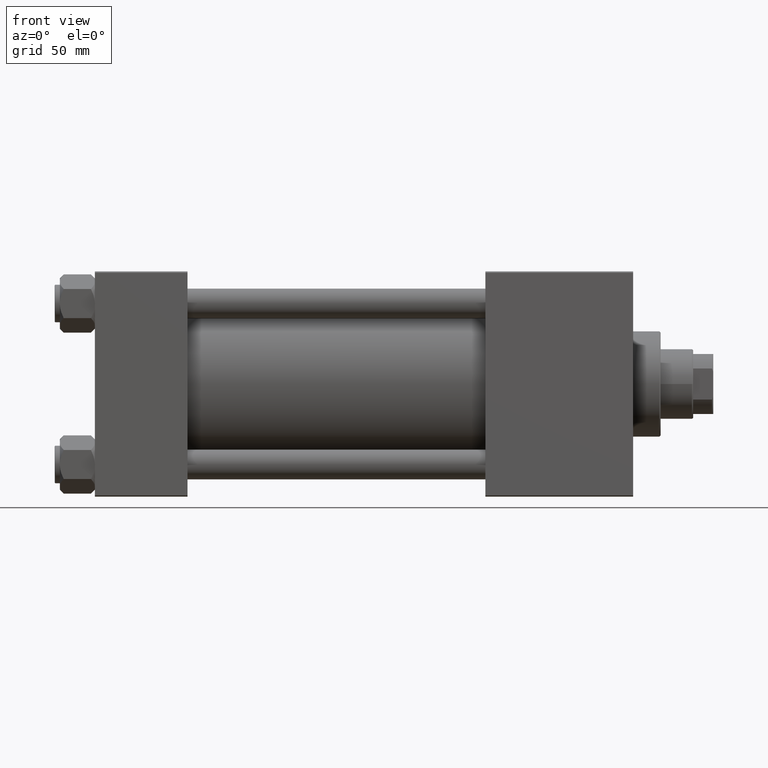
[diagram: clean part render]
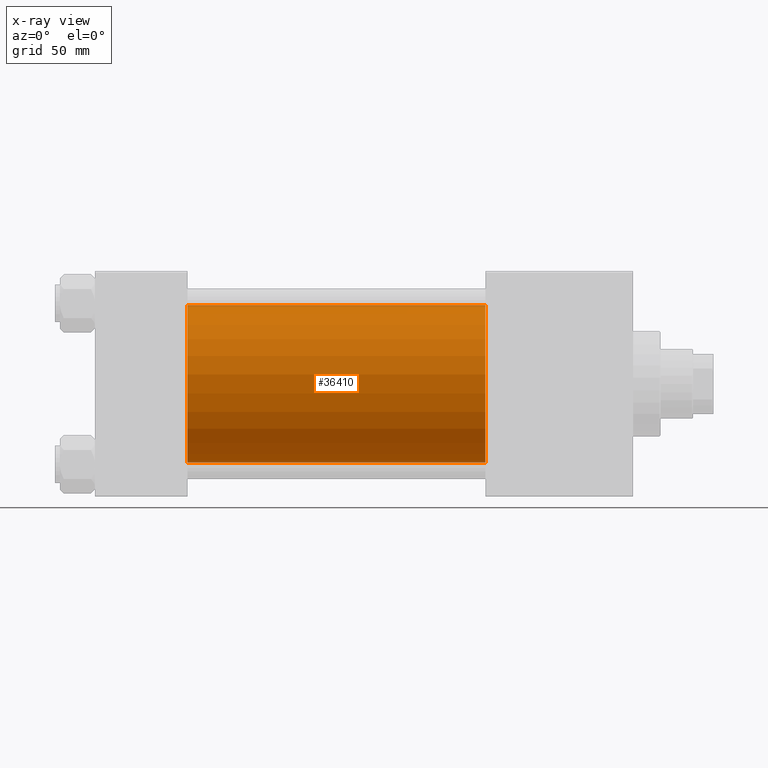
[diagram: x-ray — body ghosted, one internal face saturated and labeled with its STEP entity id]
A machine part, front view, then the same camera in x-ray: the body is ghosted and one INTERNAL B-rep face — a face not visible from any outside direction — is saturated and labeled: STEP entity #36410.
In plain terms, the highlighted cylindrical surface (partial cylindrical patch) has radius 31.5 mm, axis along (-1, -0, -0).
Its self-contained STEP definition (entity closure, byte-faithful):
#1065 = AXIS2_PLACEMENT_3D ( 'NONE', #48445, #29048, #17847 ) ;
#4202 = VERTEX_POINT ( 'NONE', #37479 ) ;
#4874 = EDGE_CURVE ( 'NONE', #19110, #5071, #8073, .T. ) ;
#5071 = VERTEX_POINT ( 'NONE', #10913 ) ;
#7567 = DIRECTION ( 'NONE',  ( -1.000000000000000000, -0.000000000000000000, -0.000000000000000000 ) ) ;
#8073 = LINE ( 'NONE', #26649, #49265 ) ;
#10243 = ORIENTED_EDGE ( 'NONE', *, *, #4874, .F. ) ;
#10913 = CARTESIAN_POINT ( 'NONE',  ( 37.00000000000000000, -2.602085213965210642E-15, 31.50000000000000000 ) ) ;
#11319 = LINE ( 'NONE', #19720, #17295 ) ;
#12181 = ORIENTED_EDGE ( 'NONE', *, *, #27632, .F. ) ;
#13466 = CARTESIAN_POINT ( 'NONE',  ( 37.00000000000000000, -2.602085213965210642E-15, 0.000000000000000000 ) ) ;
#13974 = CARTESIAN_POINT ( 'NONE',  ( 156.0000000000000000, -2.602085213965210642E-15, 0.000000000000000000 ) ) ;
#14771 = CIRCLE ( 'NONE', #39137, 31.50000000000000000 ) ;
#15711 = CIRCLE ( 'NONE', #1065, 31.50000000000000000 ) ;
#17295 = VECTOR ( 'NONE', #42139, 1000.000000000000000 ) ;
#17847 = DIRECTION ( 'NONE',  ( 0.000000000000000000, 0.000000000000000000, -1.000000000000000000 ) ) ;
#18872 = VERTEX_POINT ( 'NONE', #46261 ) ;
#19110 = VERTEX_POINT ( 'NONE', #38003 ) ;
#19596 = AXIS2_PLACEMENT_3D ( 'NONE', #13974, #48640, #29482 ) ;
#19720 = CARTESIAN_POINT ( 'NONE',  ( 156.0000000000000000, 1.255552203348951850E-15, -31.50000000000000000 ) ) ;
#21360 = DIRECTION ( 'NONE',  ( 1.000000000000000000, 0.000000000000000000, 0.000000000000000000 ) ) ;
#26649 = CARTESIAN_POINT ( 'NONE',  ( 156.0000000000000000, -2.602085213965210642E-15, 31.50000000000000000 ) ) ;
#27632 = EDGE_CURVE ( 'NONE', #5071, #18872, #14771, .T. ) ;
#29048 = DIRECTION ( 'NONE',  ( 1.000000000000000000, 0.000000000000000000, 0.000000000000000000 ) ) ;
#29298 = EDGE_LOOP ( 'NONE', ( #43504, #35310, #12181, #10243 ) ) ;
#29482 = DIRECTION ( 'NONE',  ( 0.000000000000000000, 0.000000000000000000, 1.000000000000000000 ) ) ;
#29736 = FACE_OUTER_BOUND ( 'NONE', #29298, .T. ) ;
#30406 = EDGE_CURVE ( 'NONE', #4202, #18872, #11319, .T. ) ;
#31013 = EDGE_CURVE ( 'NONE', #19110, #4202, #15711, .T. ) ;
#35310 = ORIENTED_EDGE ( 'NONE', *, *, #30406, .T. ) ;
#36410 = ADVANCED_FACE ( 'NONE', ( #29736 ), #40445, .F. ) ;
#36865 = DIRECTION ( 'NONE',  ( 0.000000000000000000, 0.000000000000000000, -1.000000000000000000 ) ) ;
#37479 = CARTESIAN_POINT ( 'NONE',  ( 156.0000000000000000, 1.255552203348951850E-15, -31.50000000000000000 ) ) ;
#38003 = CARTESIAN_POINT ( 'NONE',  ( 156.0000000000000000, -2.602085213965210642E-15, 31.50000000000000000 ) ) ;
#39137 = AXIS2_PLACEMENT_3D ( 'NONE', #13466, #21360, #36865 ) ;
#40445 = CYLINDRICAL_SURFACE ( 'NONE', #19596, 31.50000000000000000 ) ;
#42139 = DIRECTION ( 'NONE',  ( -1.000000000000000000, -0.000000000000000000, -0.000000000000000000 ) ) ;
#43504 = ORIENTED_EDGE ( 'NONE', *, *, #31013, .T. ) ;
#46261 = CARTESIAN_POINT ( 'NONE',  ( 37.00000000000000000, 1.255552203348951850E-15, -31.50000000000000000 ) ) ;
#48445 = CARTESIAN_POINT ( 'NONE',  ( 156.0000000000000000, -2.602085213965210642E-15, 0.000000000000000000 ) ) ;
#48640 = DIRECTION ( 'NONE',  ( -1.000000000000000000, -0.000000000000000000, -0.000000000000000000 ) ) ;
#49265 = VECTOR ( 'NONE', #7567, 1000.000000000000000 ) ;